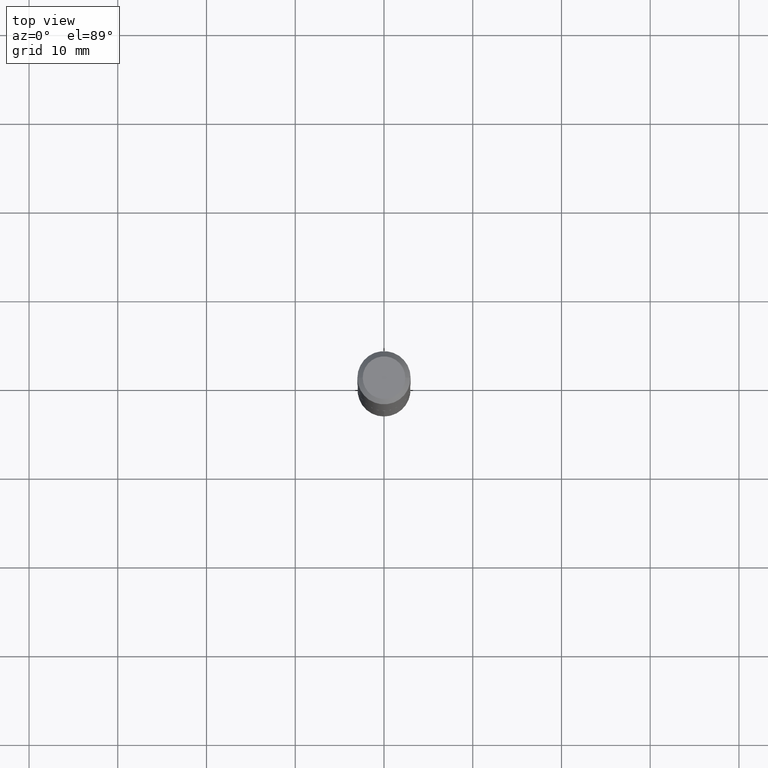
[diagram: clean part render]
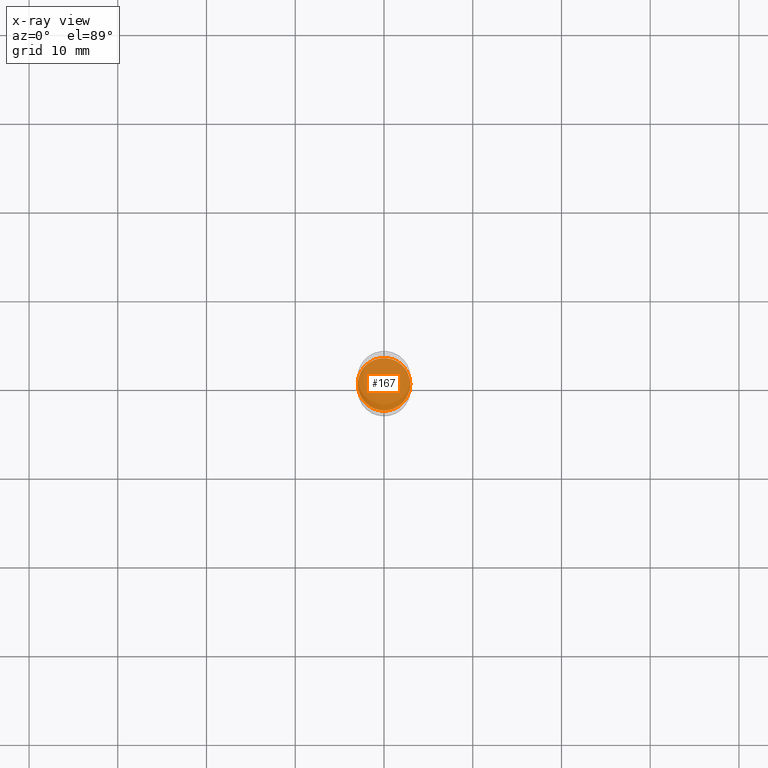
[diagram: x-ray — body ghosted, one internal face saturated and labeled with its STEP entity id]
A machine part, top view, then the same camera in x-ray: the body is ghosted and one INTERNAL B-rep face — a face not visible from any outside direction — is saturated and labeled: STEP entity #167.
In plain terms, the highlighted planar face has unit normal (-0, 0, 1).
Its self-contained STEP definition (entity closure, byte-faithful):
#32 = DIRECTION ( 'NONE',  ( 1.000000000000000000, -6.982962677686265133E-15, 0.000000000000000000 ) ) ;
#35 = DIRECTION ( 'NONE',  ( 1.000000000000000000, -6.982962677686265133E-15, 0.000000000000000000 ) ) ;
#67 = FACE_OUTER_BOUND ( 'NONE', #122, .T. ) ;
#93 = EDGE_CURVE ( 'NONE', #426, #266, #251, .T. ) ;
#122 = EDGE_LOOP ( 'NONE', ( #199, #470 ) ) ;
#142 = DIRECTION ( 'NONE',  ( -2.445468806185136597E-29, 3.491481338843145583E-15, 1.000000000000000000 ) ) ;
#167 = ADVANCED_FACE ( 'NONE', ( #67 ), #220, .F. ) ;
#177 = CARTESIAN_POINT ( 'NONE',  ( 4.231639222222761092E-29, -6.041659308734179365E-15, -1.730400000000000160 ) ) ;
#183 = DIRECTION ( 'NONE',  ( 1.000000000000000000, -6.982962677686265922E-15, 4.876176775795935793E-29 ) ) ;
#189 = EDGE_CURVE ( 'NONE', #266, #426, #380, .T. ) ;
#199 = ORIENTED_EDGE ( 'NONE', *, *, #93, .F. ) ;
#220 = PLANE ( 'NONE',  #488 ) ;
#226 = CARTESIAN_POINT ( 'NONE',  ( -0.1166999999999999982, -5.209806708928030273E-15, -1.730400000000000160 ) ) ;
#251 = CIRCLE ( 'NONE', #269, 0.1166999999999999982 ) ;
#255 = DIRECTION ( 'NONE',  ( -2.438088387897960049E-29, 3.491481338843145188E-15, 1.000000000000000000 ) ) ;
#260 = DIRECTION ( 'NONE',  ( -2.445468806185136597E-29, 3.491481338843145583E-15, 1.000000000000000000 ) ) ;
#266 = VERTEX_POINT ( 'NONE', #226 ) ;
#269 = AXIS2_PLACEMENT_3D ( 'NONE', #177, #142, #35 ) ;
#299 = CARTESIAN_POINT ( 'NONE',  ( 1.403036846735455554E-29, -1.009237890448108840E-14, -1.730400000000000160 ) ) ;
#350 = CARTESIAN_POINT ( 'NONE',  ( 0.1166999999999999982, -6.856571053220166418E-15, -1.730400000000000160 ) ) ;
#377 = CARTESIAN_POINT ( 'NONE',  ( 4.231639222222761092E-29, -6.041659308734179365E-15, -1.730400000000000160 ) ) ;
#380 = CIRCLE ( 'NONE', #475, 0.1166999999999999982 ) ;
#426 = VERTEX_POINT ( 'NONE', #350 ) ;
#470 = ORIENTED_EDGE ( 'NONE', *, *, #189, .F. ) ;
#475 = AXIS2_PLACEMENT_3D ( 'NONE', #377, #260, #32 ) ;
#488 = AXIS2_PLACEMENT_3D ( 'NONE', #299, #255, #183 ) ;